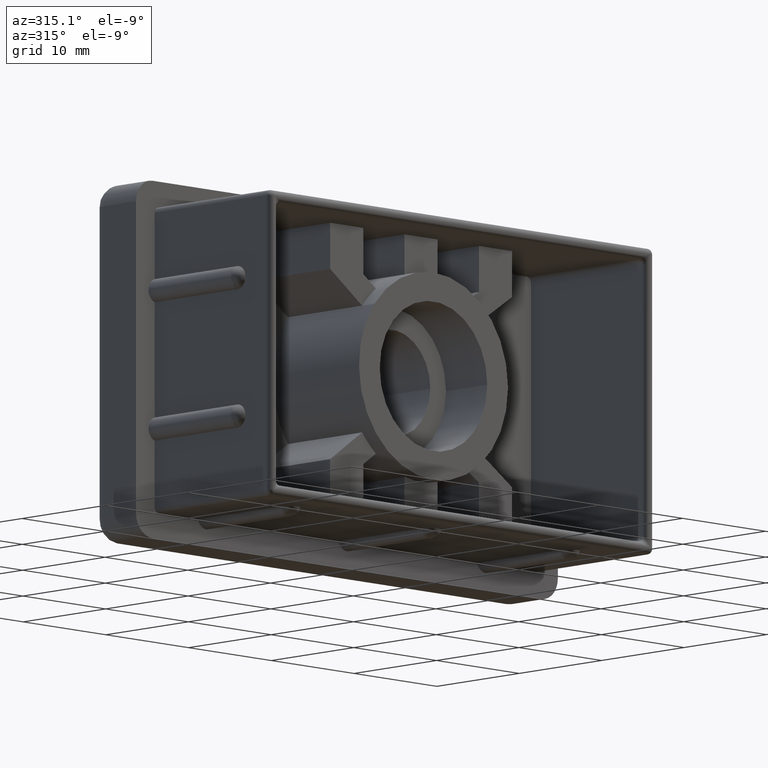
[diagram: clean part render]
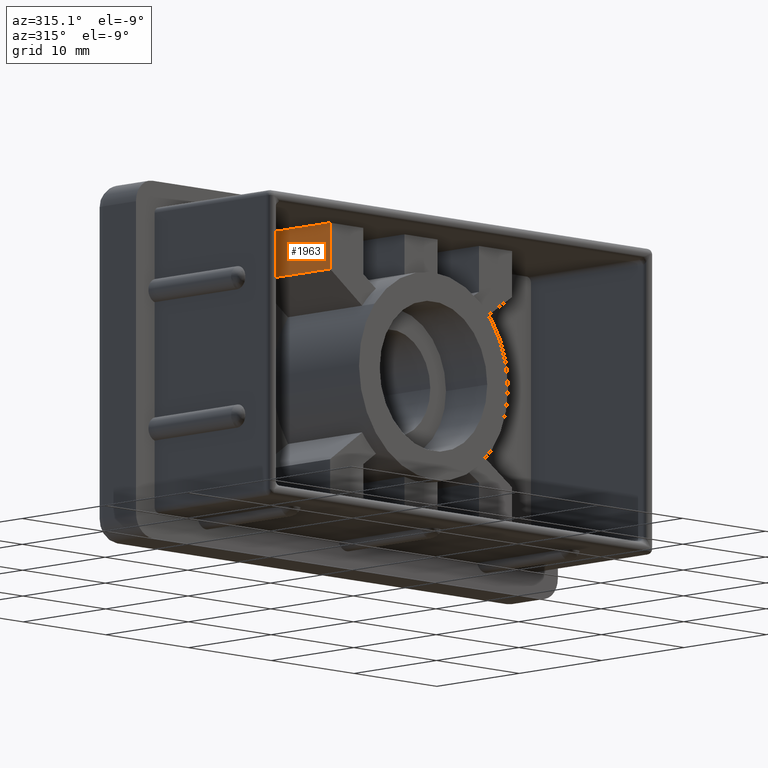
[diagram: same view with one face highlighted and labeled with its STEP entity id]
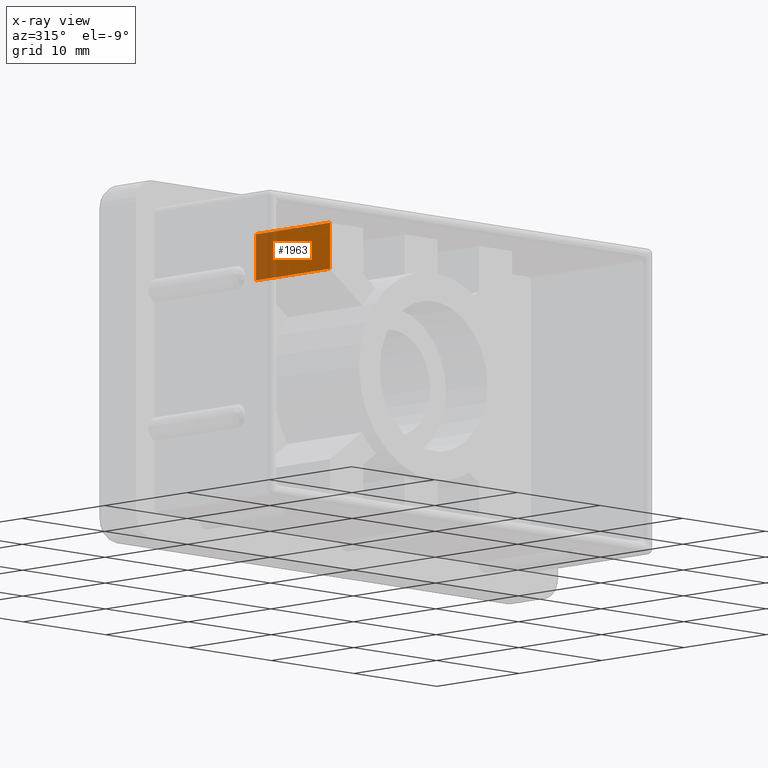
[diagram: x-ray of the same camera — body ghosted, the highlighted face saturated]
A machine part, auxiliary view. The second image highlights one B-rep face of the part: STEP entity #1963.
The next image is the same camera in x-ray: the body ghosted, the highlighted face saturated — about 27% of this face is hidden behind the body in this view.
In plain terms, the highlighted planar face has unit normal (-1, 0, 0).
Its self-contained STEP definition (entity closure, byte-faithful):
#96=PLANE('',#2127);
#172=LINE('',#2928,#348);
#216=LINE('',#3200,#392);
#293=LINE('',#4088,#469);
#295=LINE('',#4092,#471);
#348=VECTOR('',#2250,9.);
#392=VECTOR('',#2350,4.);
#469=VECTOR('',#2601,9.);
#471=VECTOR('',#2607,4.);
#607=FACE_OUTER_BOUND('',#717,.T.);
#717=EDGE_LOOP('',(#1789,#1790,#1791,#1792));
#868=VERTEX_POINT('',#2925);
#869=VERTEX_POINT('',#2927);
#918=VERTEX_POINT('',#3198);
#994=VERTEX_POINT('',#4086);
#1070=EDGE_CURVE('',#868,#869,#172,.T.);
#1137=EDGE_CURVE('',#918,#868,#216,.T.);
#1270=EDGE_CURVE('',#918,#994,#293,.T.);
#1273=EDGE_CURVE('',#869,#994,#295,.T.);
#1789=ORIENTED_EDGE('',*,*,#1137,.F.);
#1790=ORIENTED_EDGE('',*,*,#1270,.T.);
#1791=ORIENTED_EDGE('',*,*,#1273,.F.);
#1792=ORIENTED_EDGE('',*,*,#1070,.F.);
#1963=ADVANCED_FACE('',(#607),#96,.T.);
#2127=AXIS2_PLACEMENT_3D('',#4095,#2611,#2612);
#2250=DIRECTION('',(0.,-1.,0.));
#2350=DIRECTION('',(5.55111512312578E-16,0.,1.));
#2601=DIRECTION('',(0.,-1.,0.));
#2607=DIRECTION('',(-5.55111512312578E-16,0.,-1.));
#2611=DIRECTION('center_axis',(-1.,0.,5.55111512312578E-16));
#2612=DIRECTION('ref_axis',(-5.32907051820075E-16,0.,-1.));
#2925=CARTESIAN_POINT('',(12.25,14.,-0.999999999999991));
#2927=CARTESIAN_POINT('',(12.25,5.,-0.999999999999991));
#2928=CARTESIAN_POINT('',(12.25,7.,-0.999999999999991));
#3198=CARTESIAN_POINT('',(12.25,14.,-4.99999999999999));
#3200=CARTESIAN_POINT('',(12.25,14.,-7.12499999999999));
#4086=CARTESIAN_POINT('',(12.25,5.,-4.99999999999999));
#4088=CARTESIAN_POINT('',(12.25,14.,-4.99999999999999));
#4092=CARTESIAN_POINT('',(12.25,5.,-0.999999999999991));
#4095=CARTESIAN_POINT('Origin',(12.25,14.,-0.999999999999991));